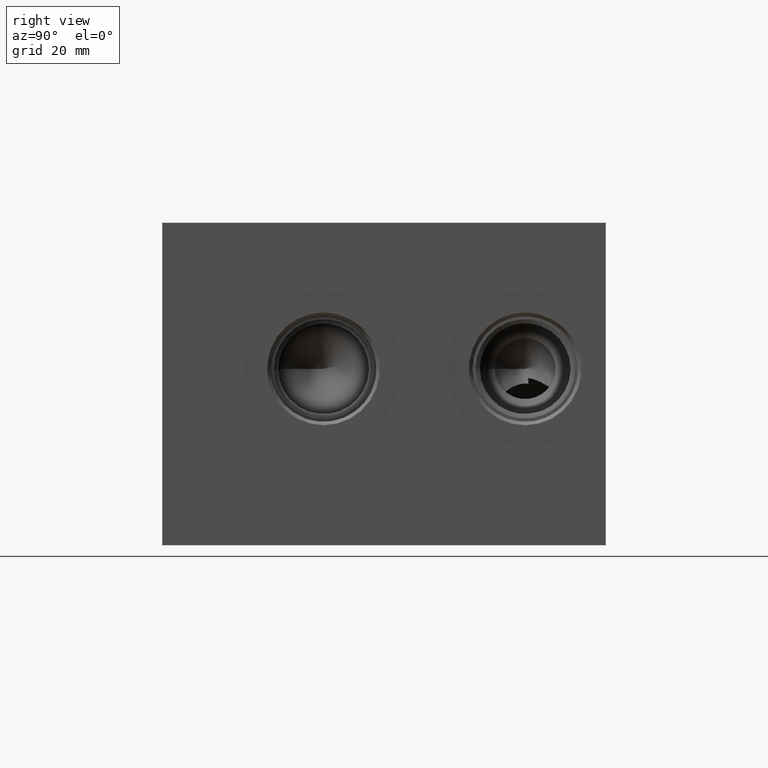
[diagram: clean part render]
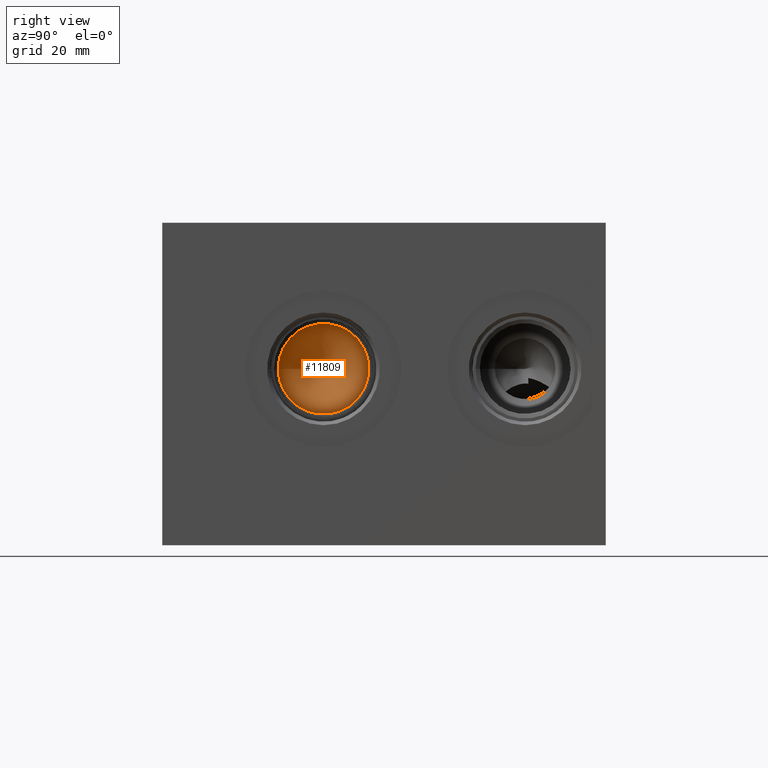
[diagram: same view with one face highlighted and labeled with its STEP entity id]
A machine part, right view. The second image highlights one B-rep face of the part: STEP entity #11809.
In plain terms, the highlighted conical surface has half-angle 60 deg.
Its self-contained STEP definition (entity closure, byte-faithful):
#29=CONICAL_SURFACE('',#12373,7.14375,1.0471975511966);
#221=CIRCLE('',#12374,14.2875);
#222=CIRCLE('',#12375,14.2875);
#1346=FACE_OUTER_BOUND('',#2013,.T.);
#2013=EDGE_LOOP('',(#10102,#10103,#10104,#10105));
#3168=LINE('',#19964,#4257);
#4257=VECTOR('',#14546,7.14375);
#5560=VERTEX_POINT('',#19960);
#5561=VERTEX_POINT('',#19961);
#5562=VERTEX_POINT('',#19963);
#7138=EDGE_CURVE('',#5560,#5561,#221,.T.);
#7139=EDGE_CURVE('',#5561,#5562,#3168,.T.);
#7140=EDGE_CURVE('',#5561,#5560,#222,.T.);
#10102=ORIENTED_EDGE('',*,*,#7138,.T.);
#10103=ORIENTED_EDGE('',*,*,#7139,.T.);
#10104=ORIENTED_EDGE('',*,*,#7139,.F.);
#10105=ORIENTED_EDGE('',*,*,#7140,.T.);
#11809=ADVANCED_FACE('',(#1346),#29,.F.);
#12373=AXIS2_PLACEMENT_3D('',#19959,#14542,#14543);
#12374=AXIS2_PLACEMENT_3D('',#19962,#14544,#14545);
#12375=AXIS2_PLACEMENT_3D('',#19965,#14547,#14548);
#14542=DIRECTION('center_axis',(1.,0.,0.));
#14543=DIRECTION('ref_axis',(0.,1.,0.));
#14544=DIRECTION('center_axis',(1.,0.,0.));
#14545=DIRECTION('ref_axis',(0.,1.,0.));
#14546=DIRECTION('',(-0.5,0.866025403784438,1.06057523872491E-16));
#14547=DIRECTION('center_axis',(1.,0.,0.));
#14548=DIRECTION('ref_axis',(0.,1.,0.));
#19959=CARTESIAN_POINT('Origin',(115.627494014477,50.8,55.5752));
#19960=CARTESIAN_POINT('',(119.75194,65.0875,55.5752));
#19961=CARTESIAN_POINT('',(119.75194,36.5125,55.5752));
#19962=CARTESIAN_POINT('Origin',(119.75194,50.8,55.5752));
#19963=CARTESIAN_POINT('',(111.503048028953,50.8,55.5752));
#19964=CARTESIAN_POINT('',(115.627494014477,43.65625,55.5752));
#19965=CARTESIAN_POINT('Origin',(119.75194,50.8,55.5752));